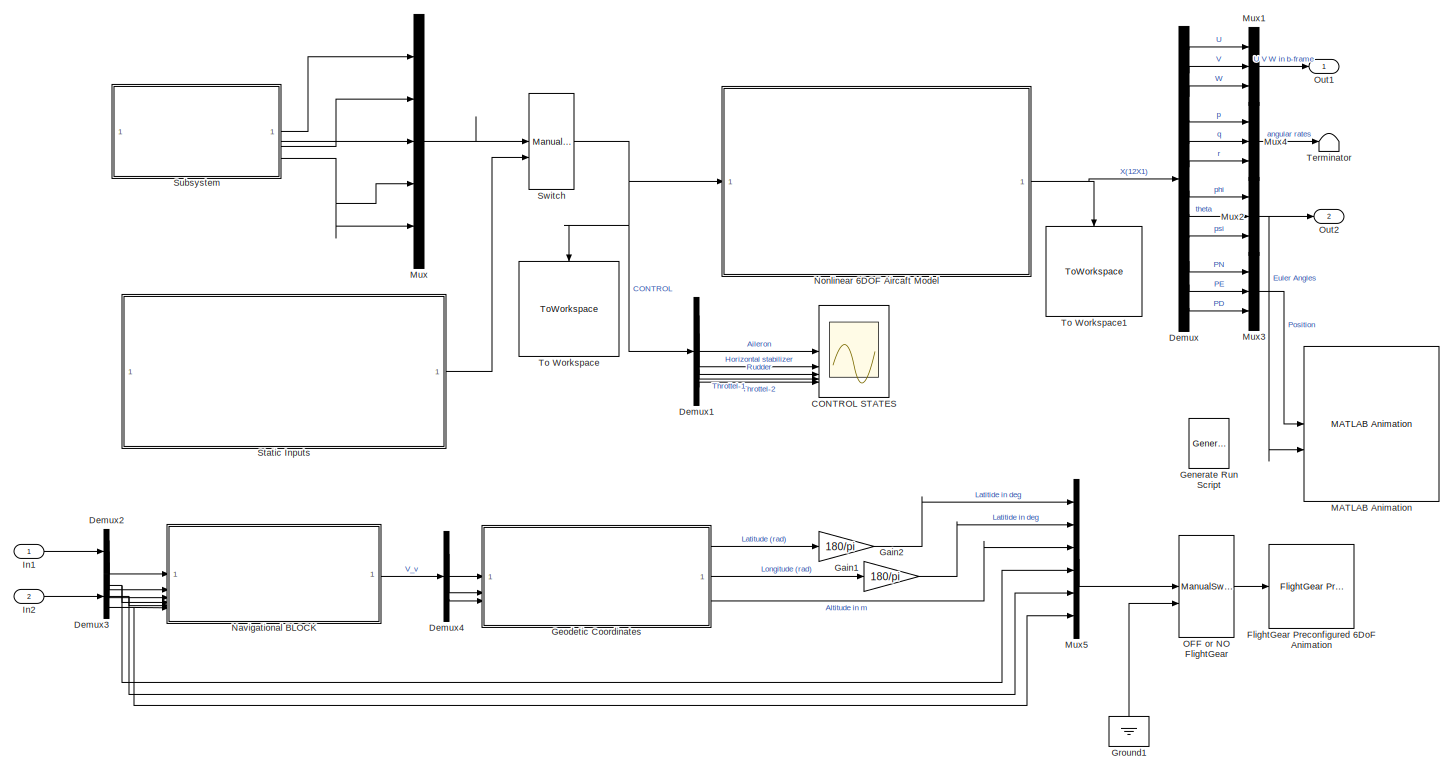
[diagram: root canvas - part 1/1, most of the canvas]
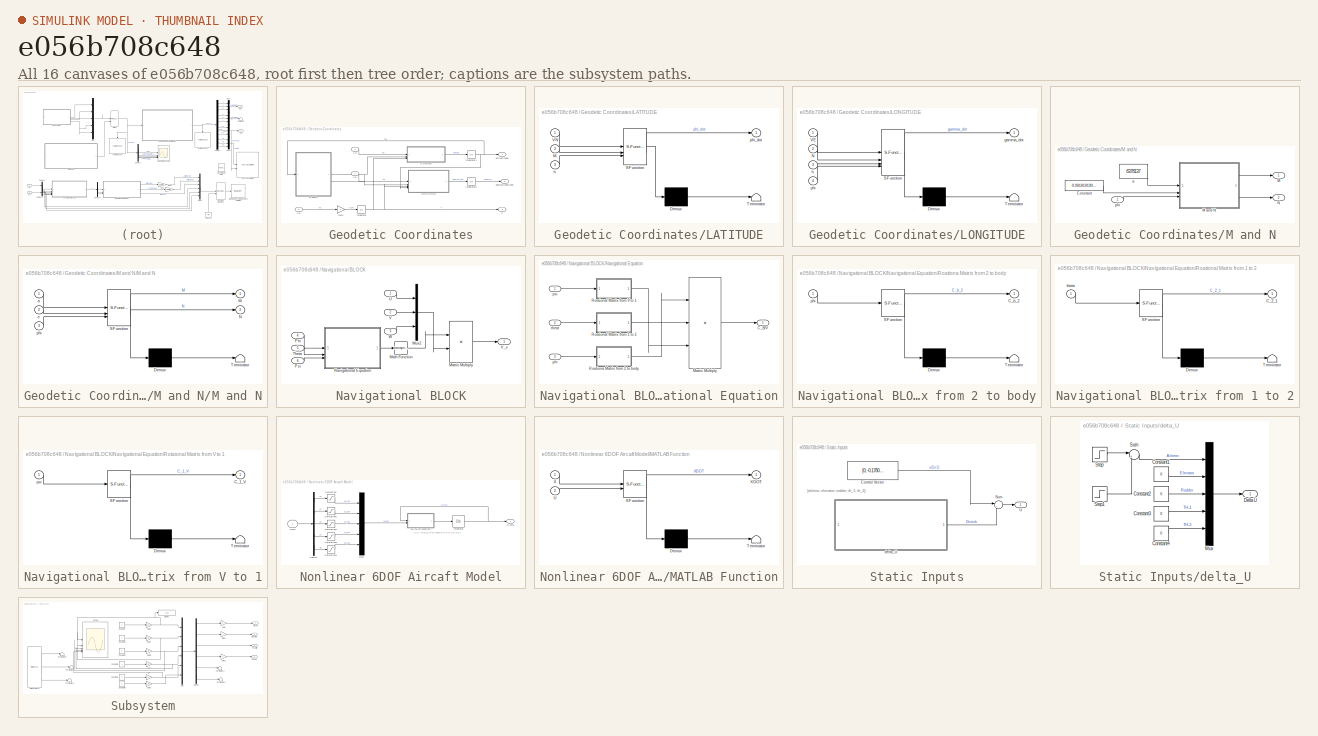
[diagram: thumbnail index - all 16 canvases of the model, root first then tree order]
MODEL slx_e056b708c648
KIND model
CONFIG AbsTol = auto
CONFIG EnableMultiTasking = off
CONFIG FixedStep = 0.0000111111111111111111111111111
CONFIG MaxStep = auto
CONFIG MinStep = auto
CONFIG RelTol = 1e-3
CONFIG SampleTimeConstraint = Unconstrained
CONFIG SolverName = VariableStepAuto
CONFIG StartTime = 0.0
CONFIG StopTime = inf
BLOCK [Scope] CONTROL STATES 
  Floating = off
  NumInputPorts = 5
  ScopeSpecificationString = Simulink.scopes.TimeScopeBlockCfg('CurrentConfiguration', extmgr.ConfigurationSet(extmgr.Configuration('Core','General UI',true),extmgr.Configuration('Core','Source UI',true),extmgr.Configuration('Sources','WiredSimulink',true),extmgr.Configuration('Visuals','Time Domain',true,'SerializedDisplays',{struct('MinYLimReal','-0.04363','MaxYLimReal','0.3927','YLabelReal','','MinYLimMag','0.00000','MaxYL...<+4220ch>
BLOCK [Demux] Demux
  NameLocation = left
  Outputs = 12
BLOCK [Demux] Demux1
  Outputs = 5
BLOCK [Demux] Demux2
  Outputs = 3
BLOCK [Demux] Demux3
  Outputs = 3
BLOCK [Demux] Demux4
  Outputs = 3
BLOCK [Reference] FlightGear Preconfigured 6DoF Animation  REF=aerolibfltsims/FlightGear
Preconfigured
6DoF Animation
  SourceBlock = aerolibfltsims/FlightGear\nPreconfigured\n6DoF Animation
  SourceType = FlightGearQuick6DoFAnimation
BLOCK [Gain] Gain1
  Gain = 180/pi
BLOCK [Gain] Gain2
  Gain = 180/pi
BLOCK [Reference] Generate Run Script  REF=aerolibfltsims/Generate
Run Script
  SourceBlock = aerolibfltsims/Generate\nRun Script
  SourceType = Generate FlightGear Run Script
BLOCK [SubSystem] Geodetic Coordinates
BLOCK [Gain] Geodetic Coordinates/Gain
  Gain = -1
BLOCK [Integrator] Geodetic Coordinates/Integrator
  InitialCondition = 150
BLOCK [Integrator] Geodetic Coordinates/Integrator1
  InitialCondition = 0.22181
BLOCK [Integrator] Geodetic Coordinates/Integrator2
  InitialCondition = 1.356068
BLOCK [SubSystem] Geodetic Coordinates/LATITUDE
  ErrorFcn = Stateflow.Translate.translate
  PermitHierarchicalResolution = ExplicitOnly
  SFBlockType = MATLAB Function
  TreatAsAtomicUnit = on
BLOCK [Demux] Geodetic Coordinates/LATITUDE/ Demux 
  Outputs = 1
BLOCK [S-Function] Geodetic Coordinates/LATITUDE/ SFunction 
  EnableBusSupport = on
  FunctionName = sf_sfun
  PortCounts = [3 2]
  SFcnIsStateOwnerBlock = off
  SFunctionDeploymentMode = off
  Tag = Stateflow S-Function 5
BLOCK [Terminator] Geodetic Coordinates/LATITUDE/ Terminator 
BLOCK [Inport] Geodetic Coordinates/LATITUDE/M
  Port = 2
BLOCK [Inport] Geodetic Coordinates/LATITUDE/VN
BLOCK [Inport] Geodetic Coordinates/LATITUDE/h
  Port = 3
BLOCK [Outport] Geodetic Coordinates/LATITUDE/phi_dot
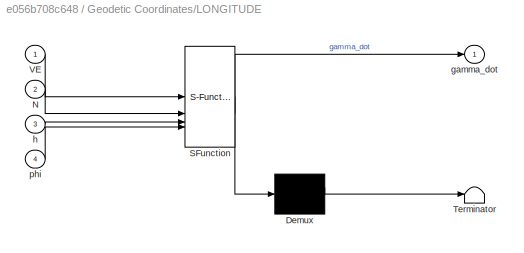
BLOCK [SubSystem] Geodetic Coordinates/LONGITUDE
  ErrorFcn = Stateflow.Translate.translate
  PermitHierarchicalResolution = ExplicitOnly
  SFBlockType = MATLAB Function
  TreatAsAtomicUnit = on
BLOCK [Demux] Geodetic Coordinates/LONGITUDE/ Demux 
  Outputs = 1
BLOCK [S-Function] Geodetic Coordinates/LONGITUDE/ SFunction 
  EnableBusSupport = on
  FunctionName = sf_sfun
  PortCounts = [4 2]
  SFcnIsStateOwnerBlock = off
  SFunctionDeploymentMode = off
  Tag = Stateflow S-Function 6
BLOCK [Terminator] Geodetic Coordinates/LONGITUDE/ Terminator 
BLOCK [Inport] Geodetic Coordinates/LONGITUDE/N
  Port = 2
BLOCK [Inport] Geodetic Coordinates/LONGITUDE/VE
BLOCK [Outport] Geodetic Coordinates/LONGITUDE/gamma_dot
BLOCK [Inport] Geodetic Coordinates/LONGITUDE/h
  Port = 3
BLOCK [Inport] Geodetic Coordinates/LONGITUDE/phi
  Port = 4
BLOCK [SubSystem] Geodetic Coordinates/M and N
BLOCK [Constant] Geodetic Coordinates/M and N/Constant
  Value = 0.081819190842622
BLOCK [Outport] Geodetic Coordinates/M and N/M
BLOCK [SubSystem] Geodetic Coordinates/M and N/M and N
  ErrorFcn = Stateflow.Translate.translate
  PermitHierarchicalResolution = ExplicitOnly
  SFBlockType = MATLAB Function
  TreatAsAtomicUnit = on
BLOCK [Demux] Geodetic Coordinates/M and N/M and N/ Demux 
  Outputs = 1
BLOCK [S-Function] Geodetic Coordinates/M and N/M and N/ SFunction 
  EnableBusSupport = on
  FunctionName = sf_sfun
  PortCounts = [3 3]
  SFcnIsStateOwnerBlock = off
  SFunctionDeploymentMode = off
  Tag = Stateflow S-Function 7
BLOCK [Terminator] Geodetic Coordinates/M and N/M and N/ Terminator 
BLOCK [Outport] Geodetic Coordinates/M and N/M and N/M
BLOCK [Outport] Geodetic Coordinates/M and N/M and N/N
  Port = 2
BLOCK [Inport] Geodetic Coordinates/M and N/M and N/a
BLOCK [Inport] Geodetic Coordinates/M and N/M and N/e
  Port = 2
BLOCK [Inport] Geodetic Coordinates/M and N/M and N/phi
  Port = 3
BLOCK [Outport] Geodetic Coordinates/M and N/N
  Port = 2
BLOCK [Constant] Geodetic Coordinates/M and N/a
  Value = 6378137
BLOCK [Inport] Geodetic Coordinates/M and N/phi
BLOCK [Inport] Geodetic Coordinates/VD
  Port = 3
BLOCK [Inport] Geodetic Coordinates/VE
  Port = 2
BLOCK [Inport] Geodetic Coordinates/VN
BLOCK [Outport] Geodetic Coordinates/gamma(Longitude)
  Port = 2
BLOCK [Outport] Geodetic Coordinates/h
  Port = 3
BLOCK [Outport] Geodetic Coordinates/phi(Latitude)
BLOCK [Ground] Ground1
  NameLocation = right
BLOCK [Inport] In1
BLOCK [Inport] In2
  Port = 2
BLOCK [Reference] MATLAB Animation  REF=aerolibanim/MATLAB
Animation
  SourceBlock = aerolibanim/MATLAB\nAnimation
  SourceType = AeroMATLABAnimation
  Tag = Matlab Animation 6 DOF
BLOCK [Mux] Mux
  DisplayOption = bar
  Inputs = 5
BLOCK [Mux] Mux1
  DisplayOption = bar
  Inputs = 3
BLOCK [Mux] Mux2
  DisplayOption = bar
  Inputs = 3
BLOCK [Mux] Mux3
  DisplayOption = bar
  Inputs = 3
BLOCK [Mux] Mux4
  DisplayOption = bar
  Inputs = 3
BLOCK [Mux] Mux5
  DisplayOption = bar
  Inputs = 6
BLOCK [SubSystem] Navigational BLOCK
  NameLocation = top
BLOCK [Math] Navigational BLOCK/Math Function
  Operator = transpose
BLOCK [Product] Navigational BLOCK/Matrix Multiply
  Multiplication = Matrix(*)
BLOCK [Mux] Navigational BLOCK/Mux2
  DisplayOption = bar
  Inputs = 3
BLOCK [SubSystem] Navigational BLOCK/Navigational Equation
BLOCK [Outport] Navigational BLOCK/Navigational Equation/C_B//V
BLOCK [Product] Navigational BLOCK/Navigational Equation/Matrix Multiply
  Inputs = 3
  Multiplication = Matrix(*)
BLOCK [SubSystem] Navigational BLOCK/Navigational Equation/Roationa Matrix from 2 to body
  ErrorFcn = Stateflow.Translate.translate
  PermitHierarchicalResolution = ExplicitOnly
  SFBlockType = MATLAB Function
  TreatAsAtomicUnit = on
BLOCK [Demux] Navigational BLOCK/Navigational Equation/Roationa Matrix from 2 to body/ Demux 
  Outputs = 1
BLOCK [S-Function] Navigational BLOCK/Navigational Equation/Roationa Matrix from 2 to body/ SFunction 
  EnableBusSupport = on
  FunctionName = sf_sfun
  PortCounts = [1 2]
  SFcnIsStateOwnerBlock = off
  SFunctionDeploymentMode = off
  Tag = Stateflow S-Function 3
BLOCK [Terminator] Navigational BLOCK/Navigational Equation/Roationa Matrix from 2 to body/ Terminator 
BLOCK [Outport] Navigational BLOCK/Navigational Equation/Roationa Matrix from 2 to body/C_b_2
BLOCK [Inport] Navigational BLOCK/Navigational Equation/Roationa Matrix from 2 to body/phi
BLOCK [SubSystem] Navigational BLOCK/Navigational Equation/Roational Matrix from 1 to 2
  ErrorFcn = Stateflow.Translate.translate
  PermitHierarchicalResolution = ExplicitOnly
  SFBlockType = MATLAB Function
  TreatAsAtomicUnit = on
BLOCK [Demux] Navigational BLOCK/Navigational Equation/Roational Matrix from 1 to 2/ Demux 
  Outputs = 1
BLOCK [S-Function] Navigational BLOCK/Navigational Equation/Roational Matrix from 1 to 2/ SFunction 
  EnableBusSupport = on
  FunctionName = sf_sfun
  PortCounts = [1 2]
  SFcnIsStateOwnerBlock = off
  SFunctionDeploymentMode = off
  Tag = Stateflow S-Function 1
BLOCK [Terminator] Navigational BLOCK/Navigational Equation/Roational Matrix from 1 to 2/ Terminator 
BLOCK [Outport] Navigational BLOCK/Navigational Equation/Roational Matrix from 1 to 2/C_2_1
BLOCK [Inport] Navigational BLOCK/Navigational Equation/Roational Matrix from 1 to 2/theta
BLOCK [SubSystem] Navigational BLOCK/Navigational Equation/Rotaional Matrix from V to 1
  ErrorFcn = Stateflow.Translate.translate
  PermitHierarchicalResolution = ExplicitOnly
  SFBlockType = MATLAB Function
  TreatAsAtomicUnit = on
BLOCK [Demux] Navigational BLOCK/Navigational Equation/Rotaional Matrix from V to 1/ Demux 
  Outputs = 1
BLOCK [S-Function] Navigational BLOCK/Navigational Equation/Rotaional Matrix from V to 1/ SFunction 
  EnableBusSupport = on
  FunctionName = sf_sfun
  PortCounts = [1 2]
  SFcnIsStateOwnerBlock = off
  SFunctionDeploymentMode = off
  Tag = Stateflow S-Function 4
BLOCK [Terminator] Navigational BLOCK/Navigational Equation/Rotaional Matrix from V to 1/ Terminator 
BLOCK [Outport] Navigational BLOCK/Navigational Equation/Rotaional Matrix from V to 1/C_1_V
BLOCK [Inport] Navigational BLOCK/Navigational Equation/Rotaional Matrix from V to 1/psi
BLOCK [Inport] Navigational BLOCK/Navigational Equation/phi
  Port = 3
BLOCK [Inport] Navigational BLOCK/Navigational Equation/psi
BLOCK [Inport] Navigational BLOCK/Navigational Equation/theat
  Port = 2
BLOCK [Inport] Navigational BLOCK/Phi
  Port = 4
BLOCK [Inport] Navigational BLOCK/Psi
  Port = 6
BLOCK [Inport] Navigational BLOCK/Theta
  Port = 5
BLOCK [Inport] Navigational BLOCK/U
BLOCK [Inport] Navigational BLOCK/V
  Port = 2
BLOCK [Outport] Navigational BLOCK/V_v
BLOCK [Inport] Navigational BLOCK/W
  Port = 3
BLOCK [SubSystem] Nonlinear 6DOF Aircaft Model
BLOCK [Demux] Nonlinear 6DOF Aircaft Model/Demux
  Outputs = 5
BLOCK [Integrator] Nonlinear 6DOF Aircaft Model/Integrator
  InitialCondition = [84.9905; 0;\n 1.2713;\n0; 0; 0; 0; 0.1; 0; 0; 0.0149; 0]
BLOCK [SubSystem] Nonlinear 6DOF Aircaft Model/MATLAB Function
  ErrorFcn = Stateflow.Translate.translate
  PermitHierarchicalResolution = ExplicitOnly
  SFBlockType = MATLAB Function
  TreatAsAtomicUnit = on
BLOCK [Demux] Nonlinear 6DOF Aircaft Model/MATLAB Function/ Demux 
  Outputs = 1
BLOCK [S-Function] Nonlinear 6DOF Aircaft Model/MATLAB Function/ SFunction 
  EnableBusSupport = on
  FunctionName = sf_sfun
  PortCounts = [2 2]
  SFcnIsStateOwnerBlock = off
  SFunctionDeploymentMode = off
  Tag = Stateflow S-Function 2
BLOCK [Terminator] Nonlinear 6DOF Aircaft Model/MATLAB Function/ Terminator 
BLOCK [Inport] Nonlinear 6DOF Aircaft Model/MATLAB Function/U
  Port = 2
BLOCK [Inport] Nonlinear 6DOF Aircaft Model/MATLAB Function/X
BLOCK [Outport] Nonlinear 6DOF Aircaft Model/MATLAB Function/XDOT
BLOCK [Mux] Nonlinear 6DOF Aircaft Model/Mux1
  DisplayOption = bar
  Inputs = 5
BLOCK [Saturate] Nonlinear 6DOF Aircaft Model/Saturation
  LowerLimit = -15*(pi/180)
  UpperLimit = 25*(pi/180)
BLOCK [Saturate] Nonlinear 6DOF Aircaft Model/Saturation1
  LowerLimit = -25*(pi/180)
  UpperLimit = 10*(pi/180)
BLOCK [Saturate] Nonlinear 6DOF Aircaft Model/Saturation2
  LowerLimit = -30*(pi/180)
  UpperLimit = 30*(pi/180)
BLOCK [Saturate] Nonlinear 6DOF Aircaft Model/Saturation3
  LowerLimit = 0.5*(pi/180)
  UpperLimit = 10*(pi/180)
BLOCK [Saturate] Nonlinear 6DOF Aircaft Model/Saturation4
  LowerLimit = 0.5*(pi/180)
  UpperLimit = 10*(pi/180)
BLOCK [Outport] Nonlinear 6DOF Aircaft Model/X(12x1)
BLOCK [Inport] Nonlinear 6DOF Aircaft Model/u(5x1)
BLOCK [ManualSwitch] OFF or NO FlightGear
  CurrentSetting = 0
BLOCK [Outport] Out1
BLOCK [Outport] Out2
  Port = 2
BLOCK [SubSystem] Static Inputs
BLOCK [Constant] Static Inputs/Control Vector
  Value = [0; -0.1780; 0; 0.0821; 0.0821]
BLOCK [Sum] Static Inputs/Sum
  Inputs = |++
BLOCK [Outport] Static Inputs/U
BLOCK [SubSystem] Static Inputs/delta_U
BLOCK [Constant] Static Inputs/delta_U/Constant1
  Value = 0
BLOCK [Constant] Static Inputs/delta_U/Constant2
  Value = 0
BLOCK [Constant] Static Inputs/delta_U/Constant3
  Value = 0
BLOCK [Constant] Static Inputs/delta_U/Constant4
  Value = 0
BLOCK [Outport] Static Inputs/delta_U/Delta U
BLOCK [Mux] Static Inputs/delta_U/Mux
  DisplayOption = bar
  Inputs = 5
BLOCK [Step] Static Inputs/delta_U/Step
  After = 10*(pi/180)
  SampleTime = 0
  Time = 15
BLOCK [Step] Static Inputs/delta_U/Step1
  After = -10*(pi/180)
  SampleTime = 0
  Time = 15+5
BLOCK [Sum] Static Inputs/delta_U/Sum
  Inputs = |++
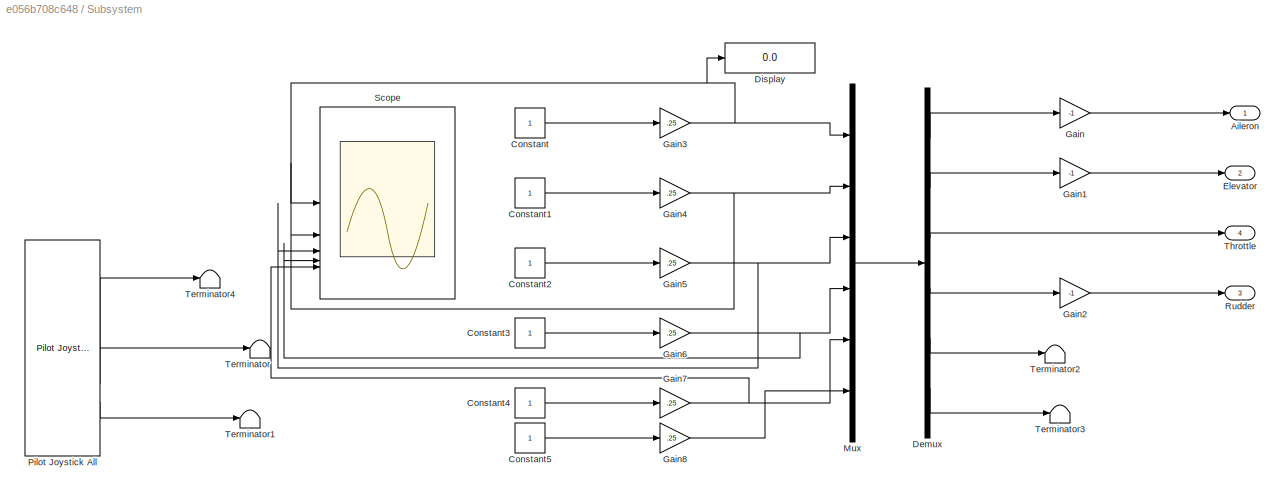
BLOCK [SubSystem] Subsystem
BLOCK [Outport] Subsystem/Aileron
BLOCK [Constant] Subsystem/Constant
  OpenFcn = set(gcbh,'Value',num2str(double(input('Press a key: ','8'))));
BLOCK [Constant] Subsystem/Constant1
  OpenFcn = set(gcbh,'Value',num2str(double(input('Press a key: ','s'))));
BLOCK [Constant] Subsystem/Constant2
  OpenFcn = set(gcbh,'Value',num2str(double(input('Press a key: ','s'))));
BLOCK [Constant] Subsystem/Constant3
  OpenFcn = set(gcbh,'Value',num2str(double(input('Press a key: ','s'))));
BLOCK [Constant] Subsystem/Constant4
  OpenFcn = set(gcbh,'Value',num2str(double(input('Press a key: ','s'))));
BLOCK [Constant] Subsystem/Constant5
  OpenFcn = set(gcbh,'Value',num2str(double(input('Press a key: ','s'))));
BLOCK [Demux] Subsystem/Demux
  Outputs = 6
BLOCK [Display] Subsystem/Display
  Decimation = 1
BLOCK [Outport] Subsystem/Elevator
  Port = 2
BLOCK [Gain] Subsystem/Gain
  Gain = -1
BLOCK [Gain] Subsystem/Gain1
  Gain = -1
BLOCK [Gain] Subsystem/Gain2
  Gain = -1
BLOCK [Gain] Subsystem/Gain3
  Gain = .25
BLOCK [Gain] Subsystem/Gain4
  Gain = .25
BLOCK [Gain] Subsystem/Gain5
  Gain = .25
BLOCK [Gain] Subsystem/Gain6
  Gain = .25
BLOCK [Gain] Subsystem/Gain7
  Gain = .25
BLOCK [Gain] Subsystem/Gain8
  Gain = .25
BLOCK [Mux] Subsystem/Mux
  DisplayOption = bar
  Inputs = 6
BLOCK [Reference] Subsystem/Pilot Joystick All  REF=aerolibanimutils/Pilot Joystick
  SourceBlock = aerolibanimutils/Pilot Joystick
  SourceType = PilotJoystick
BLOCK [Outport] Subsystem/Rudder
  Port = 3
BLOCK [Scope] Subsystem/Scope
  Floating = off
  NumInputPorts = 5
  ScopeSpecificationString = Simulink.scopes.TimeScopeBlockCfg('CurrentConfiguration', extmgr.ConfigurationSet(extmgr.Configuration('Core','General UI',true),extmgr.Configuration('Core','Source UI',true),extmgr.Configuration('Sources','WiredSimulink',true,'DataLoggingVariableName','ScopeData1'),extmgr.Configuration('Visuals','Time Domain',true,'SerializedDisplays',{struct('MinYLimReal','0.15','MaxYLimReal','0.35','YLabelReal'...<+1638ch>
BLOCK [Terminator] Subsystem/Terminator
BLOCK [Terminator] Subsystem/Terminator1
BLOCK [Terminator] Subsystem/Terminator2
BLOCK [Terminator] Subsystem/Terminator3
BLOCK [Terminator] Subsystem/Terminator4
BLOCK [Outport] Subsystem/Throttle
  Port = 4
BLOCK [ManualSwitch] Switch
  CurrentSetting = 0
BLOCK [Terminator] Terminator
BLOCK [ToWorkspace] To Workspace
  FixptAsFi = on
  MaxDataPoints = inf
  NameLocation = left
  SampleTime = -1
  SaveFormat = Timeseries
  VariableName = simU
BLOCK [ToWorkspace] To Workspace1
  FixptAsFi = on
  MaxDataPoints = inf
  NameLocation = left
  SampleTime = -1
  SaveFormat = Timeseries
  VariableName = simX
ANNOTATION Nonlinear 6DOF Aircaft Model: [U;V;W;p;q;r;Phi;theta;Psi;PN;PE;PD]
ANNOTATION Static Inputs: [aileron; elevator; rudder; th_1; th_2];
LINE Demux1:1 -> CONTROL STATES :1
LINE Demux1:2 -> CONTROL STATES :2
LINE Demux1:3 -> CONTROL STATES :3
LINE Demux1:4 -> CONTROL STATES :4
LINE Demux1:5 -> CONTROL STATES :5
LINE Demux2:1 -> Navigational BLOCK:1
LINE Demux2:2 -> Navigational BLOCK:2
LINE Demux2:3 -> Navigational BLOCK:3
NET Demux3:1 -> Mux5:4, Navigational BLOCK:4
NET Demux3:2 -> Mux5:5, Navigational BLOCK:5
NET Demux3:3 -> Mux5:6, Navigational BLOCK:6
LINE Demux4:1 -> Geodetic Coordinates:1
LINE Demux4:2 -> Geodetic Coordinates:2
LINE Demux4:3 -> Geodetic Coordinates:3
LINE Demux:1 -> Mux1:1
LINE Demux:10 -> Mux3:1
LINE Demux:11 -> Mux3:2
LINE Demux:12 -> Mux3:3
LINE Demux:2 -> Mux1:2
LINE Demux:3 -> Mux1:3
LINE Demux:4 -> Mux4:1
LINE Demux:5 -> Mux4:2
LINE Demux:6 -> Mux4:3
LINE Demux:7 -> Mux2:1
LINE Demux:8 -> Mux2:2
LINE Demux:9 -> Mux2:3
LINE Gain1:1 -> Mux5:1
LINE Gain2:1 -> Mux5:2
LINE Geodetic Coordinates/Gain:1 -> Geodetic Coordinates/Integrator:1
NET Geodetic Coordinates/Integrator1:1 -> Geodetic Coordinates/LONGITUDE:4, Geodetic Coordinates/M and N:1, Geodetic Coordinates/phi(Latitude):1
LINE Geodetic Coordinates/Integrator2:1 -> Geodetic Coordinates/gamma(Longitude):1
NET Geodetic Coordinates/Integrator:1 -> Geodetic Coordinates/LATITUDE:3, Geodetic Coordinates/LONGITUDE:3, Geodetic Coordinates/h:1
LINE Geodetic Coordinates/LATITUDE:1 -> Geodetic Coordinates/Integrator1:1
LINE Geodetic Coordinates/LONGITUDE:1 -> Geodetic Coordinates/Integrator2:1
LINE Geodetic Coordinates/M and N/Constant:1 -> Geodetic Coordinates/M and N/M and N:2
LINE Geodetic Coordinates/M and N/M and N:1 -> Geodetic Coordinates/M and N/M:1
LINE Geodetic Coordinates/M and N/M and N:2 -> Geodetic Coordinates/M and N/N:1
LINE Geodetic Coordinates/M and N/a:1 -> Geodetic Coordinates/M and N/M and N:1
LINE Geodetic Coordinates/M and N/phi:1 -> Geodetic Coordinates/M and N/M and N:3
LINE Geodetic Coordinates/M and N:1 -> Geodetic Coordinates/LATITUDE:2
LINE Geodetic Coordinates/M and N:2 -> Geodetic Coordinates/LONGITUDE:2
LINE Geodetic Coordinates/VD:1 -> Geodetic Coordinates/Gain:1
LINE Geodetic Coordinates/VE:1 -> Geodetic Coordinates/LONGITUDE:1
LINE Geodetic Coordinates/VN:1 -> Geodetic Coordinates/LATITUDE:1
LINE Geodetic Coordinates:1 -> Gain1:1
LINE Geodetic Coordinates:2 -> Gain2:1
LINE Geodetic Coordinates:3 -> Mux5:3
LINE Ground1:1 -> OFF or NO FlightGear:2
LINE In1:1 -> Demux2:1
LINE In2:1 -> Demux3:1
LINE Mux1:1 -> Out1:1
NET Mux2:1 -> MATLAB Animation:2, Out2:1
LINE Mux3:1 -> MATLAB Animation:1
LINE Mux4:1 -> Terminator:1
LINE Mux5:1 -> OFF or NO FlightGear:1
LINE Mux:1 -> Switch:1
LINE Navigational BLOCK/Math Function:1 -> Navigational BLOCK/Matrix Multiply:1
LINE Navigational BLOCK/Matrix Multiply:1 -> Navigational BLOCK/V_v:1
LINE Navigational BLOCK/Mux2:1 -> Navigational BLOCK/Matrix Multiply:2
LINE Navigational BLOCK/Navigational Equation/Matrix Multiply:1 -> Navigational BLOCK/Navigational Equation/C_B//V:1
LINE Navigational BLOCK/Navigational Equation/Roationa Matrix from 2 to body:1 -> Navigational BLOCK/Navigational Equation/Matrix Multiply:1
LINE Navigational BLOCK/Navigational Equation/Roational Matrix from 1 to 2:1 -> Navigational BLOCK/Navigational Equation/Matrix Multiply:2
LINE Navigational BLOCK/Navigational Equation/Rotaional Matrix from V to 1:1 -> Navigational BLOCK/Navigational Equation/Matrix Multiply:3
LINE Navigational BLOCK/Navigational Equation/phi:1 -> Navigational BLOCK/Navigational Equation/Roationa Matrix from 2 to body:1
LINE Navigational BLOCK/Navigational Equation/psi:1 -> Navigational BLOCK/Navigational Equation/Rotaional Matrix from V to 1:1
LINE Navigational BLOCK/Navigational Equation/theat:1 -> Navigational BLOCK/Navigational Equation/Roational Matrix from 1 to 2:1
LINE Navigational BLOCK/Navigational Equation:1 -> Navigational BLOCK/Math Function:1
LINE Navigational BLOCK/Phi:1 -> Navigational BLOCK/Navigational Equation:1
LINE Navigational BLOCK/Psi:1 -> Navigational BLOCK/Navigational Equation:3
LINE Navigational BLOCK/Theta:1 -> Navigational BLOCK/Navigational Equation:2
LINE Navigational BLOCK/U:1 -> Navigational BLOCK/Mux2:1
LINE Navigational BLOCK/V:1 -> Navigational BLOCK/Mux2:2
LINE Navigational BLOCK/W:1 -> Navigational BLOCK/Mux2:3
LINE Navigational BLOCK:1 -> Demux4:1
LINE Nonlinear 6DOF Aircaft Model/Demux:1 -> Nonlinear 6DOF Aircaft Model/Saturation:1
LINE Nonlinear 6DOF Aircaft Model/Demux:2 -> Nonlinear 6DOF Aircaft Model/Saturation1:1
LINE Nonlinear 6DOF Aircaft Model/Demux:3 -> Nonlinear 6DOF Aircaft Model/Saturation2:1
LINE Nonlinear 6DOF Aircaft Model/Demux:4 -> Nonlinear 6DOF Aircaft Model/Saturation3:1
LINE Nonlinear 6DOF Aircaft Model/Demux:5 -> Nonlinear 6DOF Aircaft Model/Saturation4:1
NET Nonlinear 6DOF Aircaft Model/Integrator:1 -> Nonlinear 6DOF Aircaft Model/MATLAB Function:1, Nonlinear 6DOF Aircaft Model/X(12x1):1
LINE Nonlinear 6DOF Aircaft Model/MATLAB Function:1 -> Nonlinear 6DOF Aircaft Model/Integrator:1
LINE Nonlinear 6DOF Aircaft Model/Mux1:1 -> Nonlinear 6DOF Aircaft Model/MATLAB Function:2
LINE Nonlinear 6DOF Aircaft Model/Saturation1:1 -> Nonlinear 6DOF Aircaft Model/Mux1:2
LINE Nonlinear 6DOF Aircaft Model/Saturation2:1 -> Nonlinear 6DOF Aircaft Model/Mux1:3
LINE Nonlinear 6DOF Aircaft Model/Saturation3:1 -> Nonlinear 6DOF Aircaft Model/Mux1:4
LINE Nonlinear 6DOF Aircaft Model/Saturation4:1 -> Nonlinear 6DOF Aircaft Model/Mux1:5
LINE Nonlinear 6DOF Aircaft Model/Saturation:1 -> Nonlinear 6DOF Aircaft Model/Mux1:1
LINE Nonlinear 6DOF Aircaft Model/u(5x1):1 -> Nonlinear 6DOF Aircaft Model/Demux:1
NET Nonlinear 6DOF Aircaft Model:1 -> Demux:1, To Workspace1:1
LINE OFF or NO FlightGear:1 -> FlightGear Preconfigured 6DoF Animation:1
LINE Static Inputs/Control Vector:1 -> Static Inputs/Sum:1
LINE Static Inputs/Sum:1 -> Static Inputs/U:1
LINE Static Inputs/delta_U/Constant1:1 -> Static Inputs/delta_U/Mux:2
LINE Static Inputs/delta_U/Constant2:1 -> Static Inputs/delta_U/Mux:3
LINE Static Inputs/delta_U/Constant3:1 -> Static Inputs/delta_U/Mux:4
LINE Static Inputs/delta_U/Constant4:1 -> Static Inputs/delta_U/Mux:5
LINE Static Inputs/delta_U/Mux:1 -> Static Inputs/delta_U/Delta U:1
LINE Static Inputs/delta_U/Step1:1 -> Static Inputs/delta_U/Sum:2
LINE Static Inputs/delta_U/Step:1 -> Static Inputs/delta_U/Sum:1
LINE Static Inputs/delta_U/Sum:1 -> Static Inputs/delta_U/Mux:1
LINE Static Inputs/delta_U:1 -> Static Inputs/Sum:2
LINE Static Inputs:1 -> Switch:2
LINE Subsystem/Constant1:1 -> Subsystem/Gain4:1
LINE Subsystem/Constant2:1 -> Subsystem/Gain5:1
LINE Subsystem/Constant3:1 -> Subsystem/Gain6:1
LINE Subsystem/Constant4:1 -> Subsystem/Gain7:1
LINE Subsystem/Constant5:1 -> Subsystem/Gain8:1
LINE Subsystem/Constant:1 -> Subsystem/Gain3:1
LINE Subsystem/Demux:1 -> Subsystem/Gain:1
LINE Subsystem/Demux:2 -> Subsystem/Gain1:1
LINE Subsystem/Demux:3 -> Subsystem/Throttle:1
LINE Subsystem/Demux:4 -> Subsystem/Gain2:1
LINE Subsystem/Demux:5 -> Subsystem/Terminator2:1
LINE Subsystem/Demux:6 -> Subsystem/Terminator3:1
LINE Subsystem/Gain1:1 -> Subsystem/Elevator:1
LINE Subsystem/Gain2:1 -> Subsystem/Rudder:1
NET Subsystem/Gain3:1 -> Subsystem/Display:1, Subsystem/Mux:1, Subsystem/Scope:1
NET Subsystem/Gain4:1 -> Subsystem/Mux:2, Subsystem/Scope:2
NET Subsystem/Gain5:1 -> Subsystem/Mux:3, Subsystem/Scope:3
NET Subsystem/Gain6:1 -> Subsystem/Mux:4, Subsystem/Scope:4
NET Subsystem/Gain7:1 -> Subsystem/Mux:5, Subsystem/Scope:5
LINE Subsystem/Gain8:1 -> Subsystem/Mux:6
LINE Subsystem/Gain:1 -> Subsystem/Aileron:1
LINE Subsystem/Mux:1 -> Subsystem/Demux:1
LINE Subsystem/Pilot Joystick All:1 -> Subsystem/Terminator4:1
LINE Subsystem/Pilot Joystick All:2 -> Subsystem/Terminator:1
LINE Subsystem/Pilot Joystick All:3 -> Subsystem/Terminator1:1
LINE Subsystem:1 -> Mux:1
LINE Subsystem:2 -> Mux:2
LINE Subsystem:3 -> Mux:3
NET Subsystem:4 -> Mux:4, Mux:5
NET Switch:1 -> Demux1:1, Nonlinear 6DOF Aircaft Model:1, To Workspace:1
note: NET lines group one-source signal fan-out (src -> all destinations, sorted); 1:1 wires keep LINE
CHART Navigational BLOCK/Navigational Equation/Roational Matrix from 1 to 2 states=1 transitions=1
  STATE_LABEL 'eML_blk_kernel()'
  STATE_LABEL 'SCRIPT:\nfunction C_2_1 = fcn(theta)\n\n% Roational Matrix From the 1 frame to 2 frame\n\nC_2_1=[cos(theta) 0 -sin(theta); 0 1 0; sin(theta) 0 cos(theta)];\n\nend\n'
CHART Nonlinear 6DOF Aircaft Model/MATLAB Function states=1 transitions=1
  STATE_LABEL 'eML_blk_kernel()'
  STATE_LABEL 'SCRIPT:\nfunction XDOT  = RCAM_model(X,U)\n\n%----------------STATE AMD CONTROL VECTOR---------------------\n%Extract state vector\nx1 = X(1); %u\nx2 = X(2); %v\nx3 = X(3); %w\nx4 = X(4); %p\nx5 = X(5); %q\nx6 = X(6); %r\nx7 = X(7); %phi\nx8 = X(8); %theta\nx9 = X(9); %psi\n\nu1 = U(1); %d_A (aileron)\nu2 = U(2); %d_T (stabilizer)\nu3 = U(3); %d_R (rudder)\nu4 = U(4); %d_th1 (throttle 1)\nu5 = U(5); %d_th2 (throttle...<+3608ch>'
CHART Navigational BLOCK/Navigational Equation/Roationa Matrix from 2 to body states=1 transitions=1
  STATE_LABEL 'eML_blk_kernel()'
  STATE_LABEL 'SCRIPT:\nfunction C_b_2 = fcn(phi)\n\n% Roational Matrix from the 2 frame to body frame\nC_b_2=[1 0 0; 0 cos(phi) sin(phi); 0 -sin(phi) cos(phi)];\nend\n\n'
CHART Navigational BLOCK/Navigational Equation/Rotaional Matrix from V to 1 states=1 transitions=1
  STATE_LABEL 'eML_blk_kernel()'
  STATE_LABEL 'SCRIPT:\nfunction C_1_V = fcn(psi)\n\n% Calculating the Rotaional Matrix  from the NED to 1 frame\n\nC_1_V=[cos(psi) sin(psi) 0; -sin(psi) cos(psi) 0; 0 0 1];\n\nend'
CHART Geodetic Coordinates/LATITUDE states=1 transitions=1
  STATE_LABEL 'eML_blk_kernel()'
  STATE_LABEL 'SCRIPT:\nfunction phi_dot =Latitude_Rate(VN,M,h)\n% Calculating the Rate of change of Latitude\n\nphi_dot=VN/(M+h);\nend'
CHART Geodetic Coordinates/LONGITUDE states=1 transitions=1
  STATE_LABEL 'eML_blk_kernel()'
  STATE_LABEL 'SCRIPT:\nfunction gamma_dot =Longitude_Rate(VE,N,h,phi)\n\n% Calculating the Rate of change of the Longitude\n\ngamma_dot=VE/((N+h)*cos(phi));\nend'
CHART Geodetic Coordinates/M and N/M and N states=1 transitions=1
  STATE_LABEL 'eML_blk_kernel()'
  STATE_LABEL 'SCRIPT:\nfunction[M,N]=M_N(a,e,phi)\n\nM=(a*(1-e*2)/(1-(e^2)*sin(phi))^3/2);  % Meridian Radius of Curvature\n\nN=a/(1-(e^2)*(sin(phi)^2))^3/2;        % Prime verical radius of curvature\n\nend'
CHART  states=0 transitions=0
CHART  states=0 transitions=0
CHART  states=0 transitions=0
CHART  states=0 transitions=0
CHART  states=0 transitions=0
CHART  states=0 transitions=0
CHART  states=0 transitions=0
